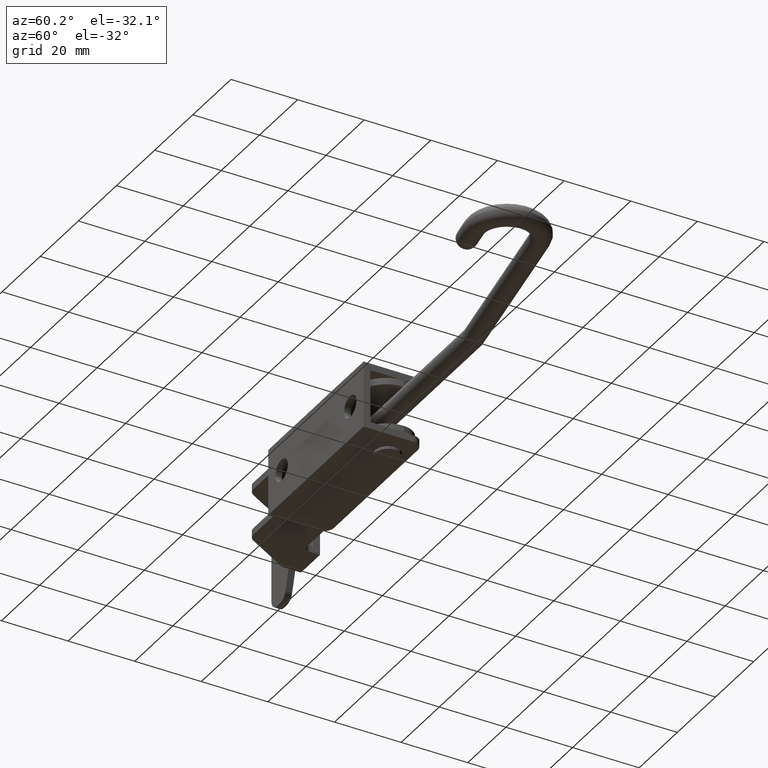
[diagram: clean part render]
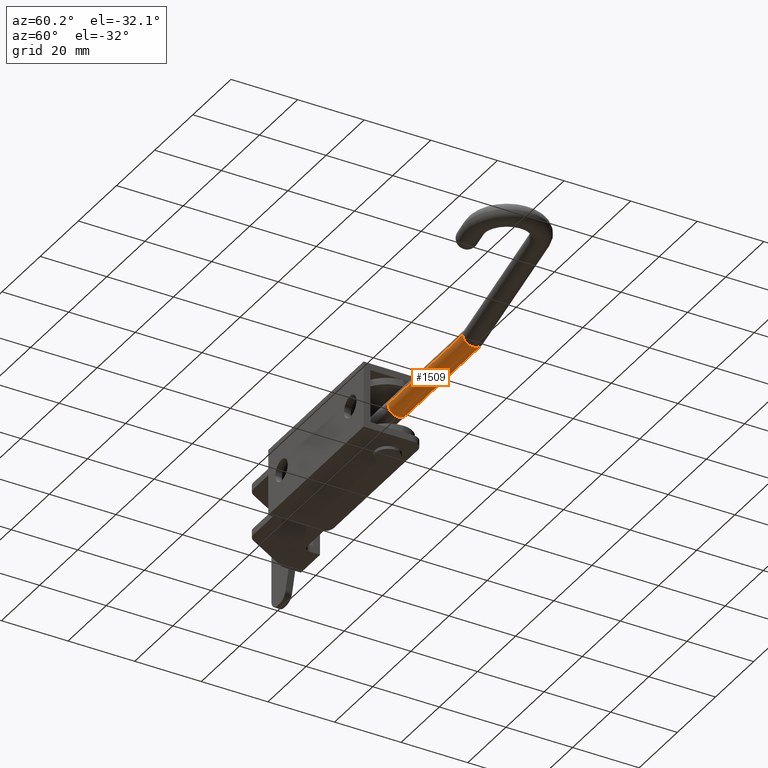
[diagram: same view with one face highlighted and labeled with its STEP entity id]
A machine part, auxiliary view. The second image highlights one B-rep face of the part: STEP entity #1509.
In plain terms, the highlighted cylindrical surface (edge-blend (fillet) strip) has radius 3 mm, axis along (-1, -0, 0).
Its self-contained STEP definition (entity closure, byte-faithful):
#11 = LINE ( 'NONE', #2901, #721 ) ;
#62 = CARTESIAN_POINT ( 'NONE',  ( 38.65244098357789000, 14.00055845814197900, -3.417637090092332600E-013 ) ) ;
#71 = EDGE_CURVE ( 'NONE', #2018, #1980, #3532, .T. ) ;
#78 = VECTOR ( 'NONE', #1617, 1000.000000000000100 ) ;
#238 = VERTEX_POINT ( 'NONE', #2660 ) ;
#253 = CARTESIAN_POINT ( 'NONE',  ( -1.160025005617002100, 14.00022662558022700, -3.173537955694119500E-013 ) ) ;
#358 = ORIENTED_EDGE ( 'NONE', *, *, #1380, .T. ) ;
#477 = EDGE_CURVE ( 'NONE', #238, #2018, #1438, .T. ) ;
#540 = FACE_OUTER_BOUND ( 'NONE', #1554, .T. ) ;
#663 = CIRCLE ( 'NONE', #3005, 3.000000000000000000 ) ;
#721 = VECTOR ( 'NONE', #3618, 1000.000000000000100 ) ;
#1350 = VERTEX_POINT ( 'NONE', #4345 ) ;
#1380 = EDGE_CURVE ( 'NONE', #1350, #1980, #663, .T. ) ;
#1438 =( BOUNDED_CURVE ( )  B_SPLINE_CURVE ( 3, ( #2862, #3567, #2805, #2709 ),
 .UNSPECIFIED., .F., .T. ) 
 B_SPLINE_CURVE_WITH_KNOTS ( ( 4, 4 ),
 ( 0.0000000000000000000, 3.141592653589793100 ),
 .UNSPECIFIED. ) 
 CURVE ( )  GEOMETRIC_REPRESENTATION_ITEM ( )  RATIONAL_B_SPLINE_CURVE ( ( 1.000000000000000000, 0.3333333333333333700, 0.3333333333333333700, 1.000000000000000000 ) ) 
 REPRESENTATION_ITEM ( '' )  );
#1509 = ADVANCED_FACE ( 'NONE', ( #540 ), #1969, .T. ) ;
#1554 = EDGE_LOOP ( 'NONE', ( #2628, #2340, #1912, #358 ) ) ;
#1581 = AXIS2_PLACEMENT_3D ( 'NONE', #3196, #3023, #3284 ) ;
#1617 = DIRECTION ( 'NONE',  ( -0.9999999999652647900, -8.334890931694223800E-006, 6.038942527641246900E-016 ) ) ;
#1665 = CARTESIAN_POINT ( 'NONE',  ( 46.87525636695304600, 14.00062699441135400, -3.463620259212222300E-013 ) ) ;
#1912 = ORIENTED_EDGE ( 'NONE', *, *, #4322, .T. ) ;
#1937 = DIRECTION ( 'NONE',  ( -8.334890932096503500E-006, 0.9999999999652647900, 4.197725880002835100E-017 ) ) ;
#1962 = DIRECTION ( 'NONE',  ( 0.9999999999652649000, 8.334890932099390200E-006, -6.038942527641247900E-016 ) ) ;
#1969 = CYLINDRICAL_SURFACE ( 'NONE', #1581, 3.000000000000001800 ) ;
#1975 = CARTESIAN_POINT ( 'NONE',  ( -1.160000000944218200, 11.00022662568443000, -3.178471213855562200E-013 ) ) ;
#1980 = VERTEX_POINT ( 'NONE', #253 ) ;
#2018 = VERTEX_POINT ( 'NONE', #62 ) ;
#2340 = ORIENTED_EDGE ( 'NONE', *, *, #477, .F. ) ;
#2628 = ORIENTED_EDGE ( 'NONE', *, *, #71, .F. ) ;
#2660 = CARTESIAN_POINT ( 'NONE',  ( 38.12755901178616800, 8.000554083099579800, -3.413311751157773100E-013 ) ) ;
#2709 = CARTESIAN_POINT ( 'NONE',  ( 38.65244098357789000, 14.00055845814197900, -3.417637090092332600E-013 ) ) ;
#2805 = CARTESIAN_POINT ( 'NONE',  ( 38.65244098357788300, 14.00055845814198100, -6.000000000000344600 ) ) ;
#2862 = CARTESIAN_POINT ( 'NONE',  ( 38.12755901178616800, 8.000554083099579800, -3.413311751157773100E-013 ) ) ;
#2901 = CARTESIAN_POINT ( 'NONE',  ( 46.87530637629864600, 8.000626994619761200, -3.469812835137666300E-013 ) ) ;
#3005 = AXIS2_PLACEMENT_3D ( 'NONE', #1975, #1962, #1937 ) ;
#3023 = DIRECTION ( 'NONE',  ( -0.9999999999652649000, -8.334890931694223800E-006, 6.038942527641247900E-016 ) ) ;
#3196 = CARTESIAN_POINT ( 'NONE',  ( 46.87528137162584600, 11.00062699451555800, -3.468553517373665500E-013 ) ) ;
#3284 = DIRECTION ( 'NONE',  ( 8.334890932530179300E-006, -0.9999999999652647900, -4.197725880002832700E-017 ) ) ;
#3532 = LINE ( 'NONE', #1665, #78 ) ;
#3567 = CARTESIAN_POINT ( 'NONE',  ( 38.12755901178615400, 8.000554083099579800, -6.000000000000344600 ) ) ;
#3618 = DIRECTION ( 'NONE',  ( -0.9999999999652647900, -8.334890931694223800E-006, 6.038942527641246900E-016 ) ) ;
#4322 = EDGE_CURVE ( 'NONE', #238, #1350, #11, .T. ) ;
#4345 = CARTESIAN_POINT ( 'NONE',  ( -1.159974996271413600, 8.000226625788634700, -3.179730531619563100E-013 ) ) ;